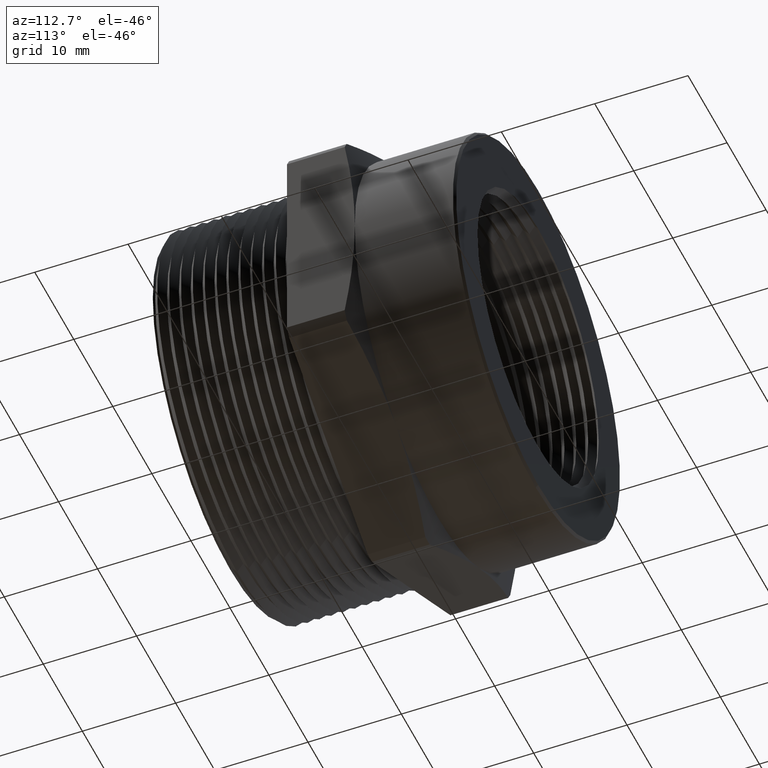
[diagram: clean part render]
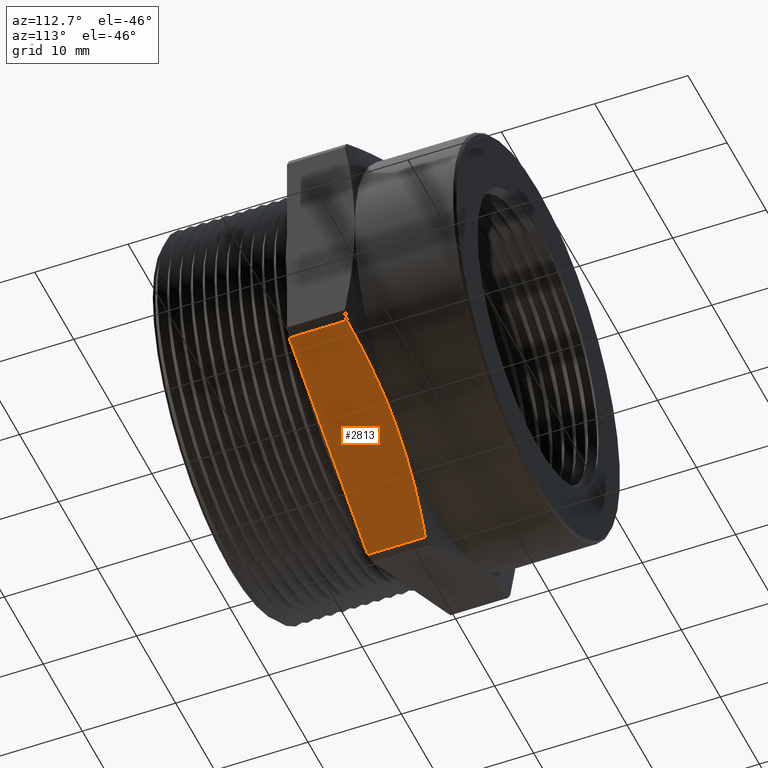
[diagram: same view with one face highlighted and labeled with its STEP entity id]
A machine part, auxiliary view. The second image highlights one B-rep face of the part: STEP entity #2813.
In plain terms, the highlighted planar face has unit normal (0.5, 0, -0.866).
Its self-contained STEP definition (entity closure, byte-faithful):
#490 = CARTESIAN_POINT ( 'NONE',  ( 0.4175000000000002000, 0.8760000000000001100, -0.7231312121600066400 ) ) ;
#1263 = CARTESIAN_POINT ( 'NONE',  ( 0.02168886132399057100, 0.5899999999999999700, -0.9516528796228528300 ) ) ;
#1264 = DIRECTION ( 'NONE',  ( -0.0000000000000000000, -1.000000000000000000, -0.0000000000000000000 ) ) ;
#1265 = VECTOR ( 'NONE', #1264, 39.37007874015748100 ) ;
#1266 = CARTESIAN_POINT ( 'NONE',  ( 0.02168886132399052900, 0.0000000000000000000, -0.9516528796228528300 ) ) ;
#1267 = LINE ( 'NONE', #1266, #1265 ) ;
#1268 = CARTESIAN_POINT ( 'NONE',  ( 0.02168886132399057100, 0.8334518796142815800, -0.9516528796228528300 ) ) ;
#1302 = CARTESIAN_POINT ( 'NONE',  ( 0.8133111386760095700, 0.8334518796142815800, -0.4946095446971602900 ) ) ;
#1303 = CARTESIAN_POINT ( 'NONE',  ( 0.8133111386760099000, 0.5899999999999999700, -0.4946095446971600600 ) ) ;
#1304 = DIRECTION ( 'NONE',  ( 0.0000000000000000000, 1.000000000000000000, 0.0000000000000000000 ) ) ;
#1305 = VECTOR ( 'NONE', #1304, 39.37007874015748100 ) ;
#1306 = CARTESIAN_POINT ( 'NONE',  ( 0.8133111386760095700, 0.0000000000000000000, -0.4946095446971600600 ) ) ;
#1307 = LINE ( 'NONE', #1306, #1305 ) ;
#1555 = CARTESIAN_POINT ( 'NONE',  ( 0.08765738443665888100, 0.8467637184484100300, -0.9135659350457117100 ) ) ;
#1556 = CARTESIAN_POINT ( 'NONE',  ( 0.02168886132399057100, 0.8334518796142815800, -0.9516528796228528300 ) ) ;
#1557 = B_SPLINE_CURVE_WITH_KNOTS ( 'NONE', 3,
 ( #1556, #1555, #1609, #1608, #1607, #1606 ),
 .UNSPECIFIED., .F., .F.,
 ( 4, 2, 4 ),
 ( 2.309401076755421200E-007, 0.005804681293663973300, 0.01160913164722027200 ),
 .UNSPECIFIED. ) ;
#1558 = DIRECTION ( 'NONE',  ( -0.8660254037844386000, 0.0000000000000000000, -0.4999999999999998900 ) ) ;
#1559 = DIRECTION ( 'NONE',  ( 0.4999999999999999400, 0.0000000000000000000, -0.8660254037844387100 ) ) ;
#1560 = CARTESIAN_POINT ( 'NONE',  ( 5.472233051403500800E-017, 1.300000000000000000, -0.9641749495466752600 ) ) ;
#1561 = AXIS2_PLACEMENT_3D ( 'NONE', #1560, #1559, #1558 ) ;
#1562 = PLANE ( 'NONE',  #1561 ) ;
#1563 = FACE_OUTER_BOUND ( 'NONE', #2814, .T. ) ;
#1595 = DIRECTION ( 'NONE',  ( 0.8660254037844386000, 0.0000000000000000000, 0.4999999999999998900 ) ) ;
#1596 = VECTOR ( 'NONE', #1595, 39.37007874015748100 ) ;
#1597 = CARTESIAN_POINT ( 'NONE',  ( 5.472233051403500800E-017, 0.5899999999999999700, -0.9641749495466752600 ) ) ;
#1598 = CARTESIAN_POINT ( 'NONE',  ( 0.8133111386760095700, 0.8334518796142815800, -0.4946095446971602900 ) ) ;
#1599 = CARTESIAN_POINT ( 'NONE',  ( 0.7473426155633414700, 0.8467637184484099200, -0.5326964892743013500 ) ) ;
#1600 = CARTESIAN_POINT ( 'NONE',  ( 0.6813740924506729300, 0.8575052578159203500, -0.5707834338514422600 ) ) ;
#1601 = CARTESIAN_POINT ( 'NONE',  ( 0.5494370462253368400, 0.8721424869321448000, -0.6469573230057243900 ) ) ;
#1602 = CARTESIAN_POINT ( 'NONE',  ( 0.4834685231126684100, 0.8759999999999998900, -0.6850442675828657400 ) ) ;
#1603 = CARTESIAN_POINT ( 'NONE',  ( 0.4175000000000002000, 0.8760000000000001100, -0.7231312121600066400 ) ) ;
#1604 = LINE ( 'NONE', #1597, #1596 ) ;
#1605 = B_SPLINE_CURVE_WITH_KNOTS ( 'NONE', 3,
 ( #1603, #1602, #1601, #1600, #1599, #1598 ),
 .UNSPECIFIED., .F., .F.,
 ( 4, 2, 4 ),
 ( 0.01160913164722027200, 0.01741358200077657000, 0.02321803235433286500 ),
 .UNSPECIFIED. ) ;
#1606 = CARTESIAN_POINT ( 'NONE',  ( 0.4175000000000002000, 0.8760000000000001100, -0.7231312121600066400 ) ) ;
#1607 = CARTESIAN_POINT ( 'NONE',  ( 0.3515314768873318800, 0.8760000000000000000, -0.7612181567371475400 ) ) ;
#1608 = CARTESIAN_POINT ( 'NONE',  ( 0.2855629537746636200, 0.8721424869321443600, -0.7993051013142884500 ) ) ;
#1609 = CARTESIAN_POINT ( 'NONE',  ( 0.1536259075493271700, 0.8575052578159204600, -0.8754789904685709200 ) ) ;
#2262 = VERTEX_POINT ( 'NONE', #490 ) ;
#2670 = VERTEX_POINT ( 'NONE', #1268 ) ;
#2672 = EDGE_CURVE ( 'NONE', #2670, #2673, #1267, .T. ) ;
#2673 = VERTEX_POINT ( 'NONE', #1263 ) ;
#2683 = EDGE_CURVE ( 'NONE', #2684, #2685, #1307, .T. ) ;
#2684 = VERTEX_POINT ( 'NONE', #1303 ) ;
#2685 = VERTEX_POINT ( 'NONE', #1302 ) ;
#2813 = ADVANCED_FACE ( 'NONE', ( #1563 ), #1562, .T. ) ;
#2814 = EDGE_LOOP ( 'NONE', ( #2815, #2816, #2818, #2820, #2821 ) ) ;
#2815 = ORIENTED_EDGE ( 'NONE', *, *, #2672, .F. ) ;
#2816 = ORIENTED_EDGE ( 'NONE', *, *, #2817, .T. ) ;
#2817 = EDGE_CURVE ( 'NONE', #2670, #2262, #1557, .T. ) ;
#2818 = ORIENTED_EDGE ( 'NONE', *, *, #2819, .T. ) ;
#2819 = EDGE_CURVE ( 'NONE', #2262, #2685, #1605, .T. ) ;
#2820 = ORIENTED_EDGE ( 'NONE', *, *, #2683, .F. ) ;
#2821 = ORIENTED_EDGE ( 'NONE', *, *, #2822, .F. ) ;
#2822 = EDGE_CURVE ( 'NONE', #2673, #2684, #1604, .T. ) ;